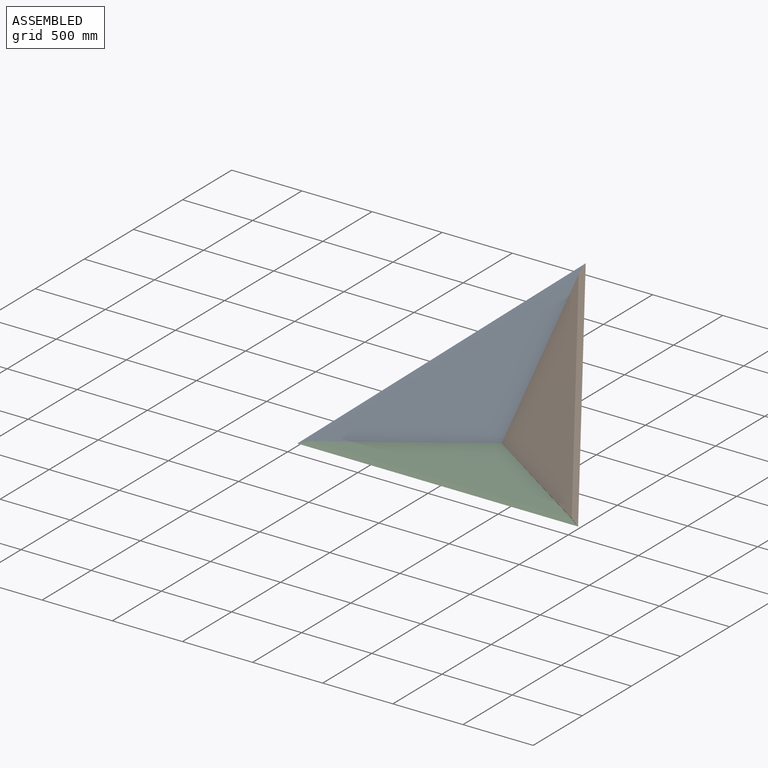
[diagram: assembled view]
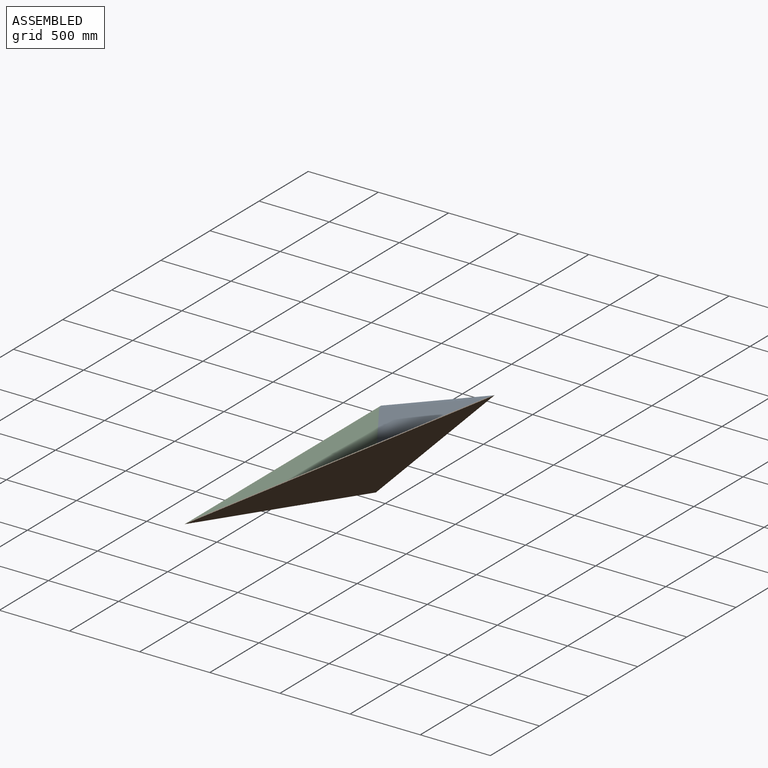
[diagram: assembled view, second angle]
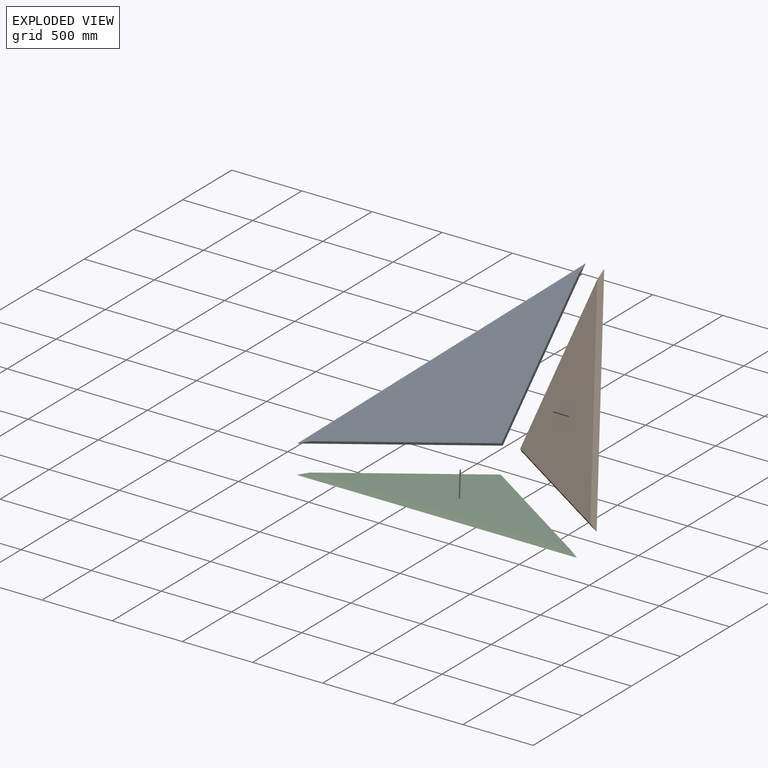
[diagram: exploded view]
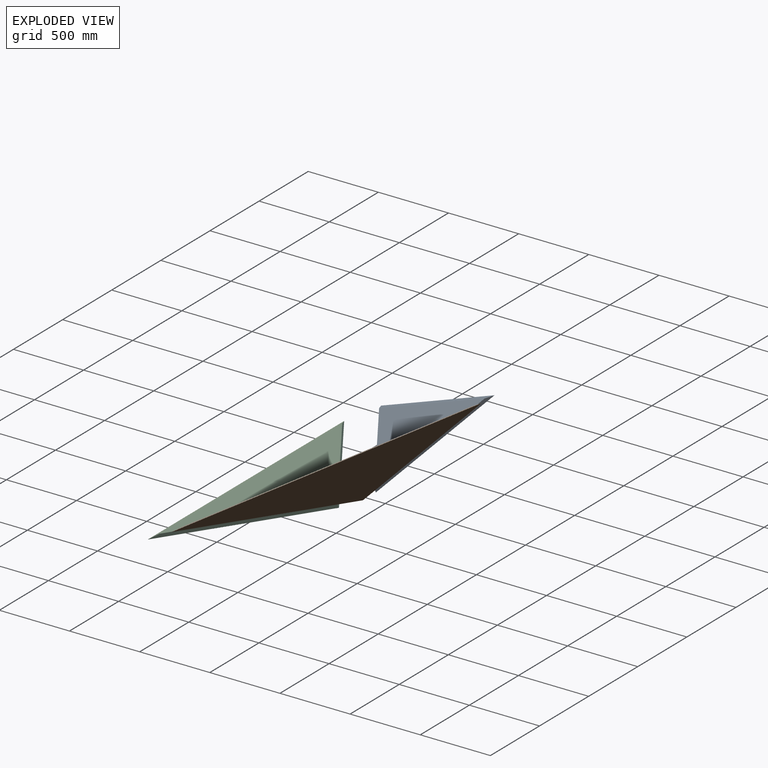
[diagram: exploded view, second angle]
ASSEMBLY  parts=3 mates=2
PART A: 5 faces, bbox 2000x663.3x20 mm
  f0: plane 1000x663.33mm, normal (0.5,0.75,0.43), area 25591.8mm2, adj f1,f2,f3,f4
  f1: plane 1000x663.33mm, normal (-0.5,0.75,0.43), area 25591.8mm2, adj f0,f2,f3,f4
  f2: plane 2000x35.35mm, normal (0,-0.49,0.87), area 78374.9mm2, adj f0,f1,f3,f4
  f3: plane 1859.36x616.68mm, normal (0,0,1), area 573318mm2, adj f0,f1,f2
  f4: plane 2000x663.33mm, normal (0,0,-1), area 663325mm2, adj f0,f1,f2
PART B: same geometry as A
PART C: same geometry as A
PLACE A rot(axis=(0,0.49,-0.87),120deg) t=(-346.46,132.36,-22.47)mm
PLACE B rot(axis=(0,-0.49,0.87),120deg) t=(653.86,132.84,-22.2)mm
PLACE C t=(153.86,-621.91,-448.39)mm
MATE parallel B.f0 <-> A.f1  axis (-1,0,0) through (153.55,443.76,-27.39)mm
MATE parallel C.f1 <-> A.f0  axis (-0.5,0.75,0.43) through (-328.77,-284.31,-438.51)mm
